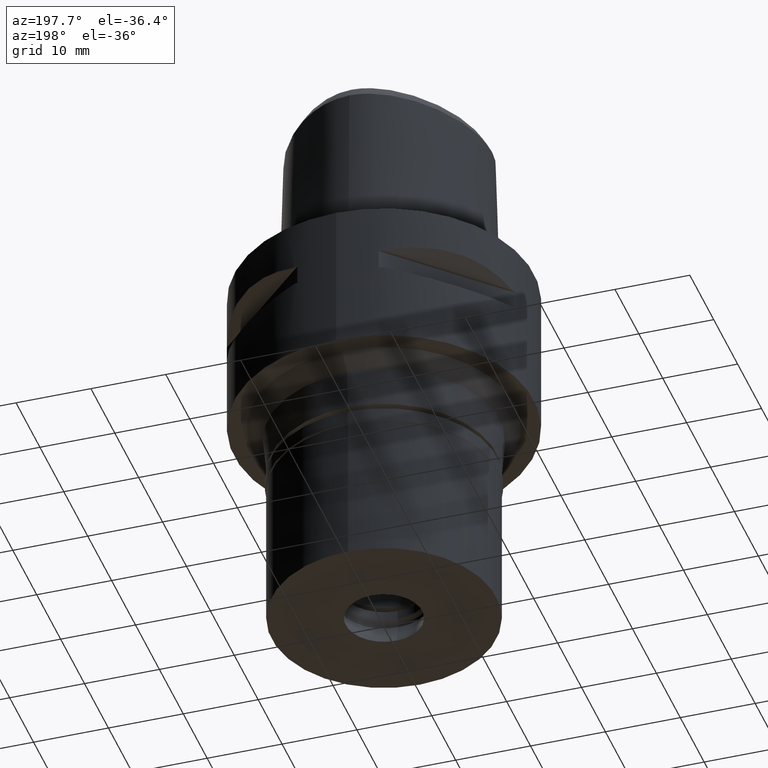
[diagram: clean part render]
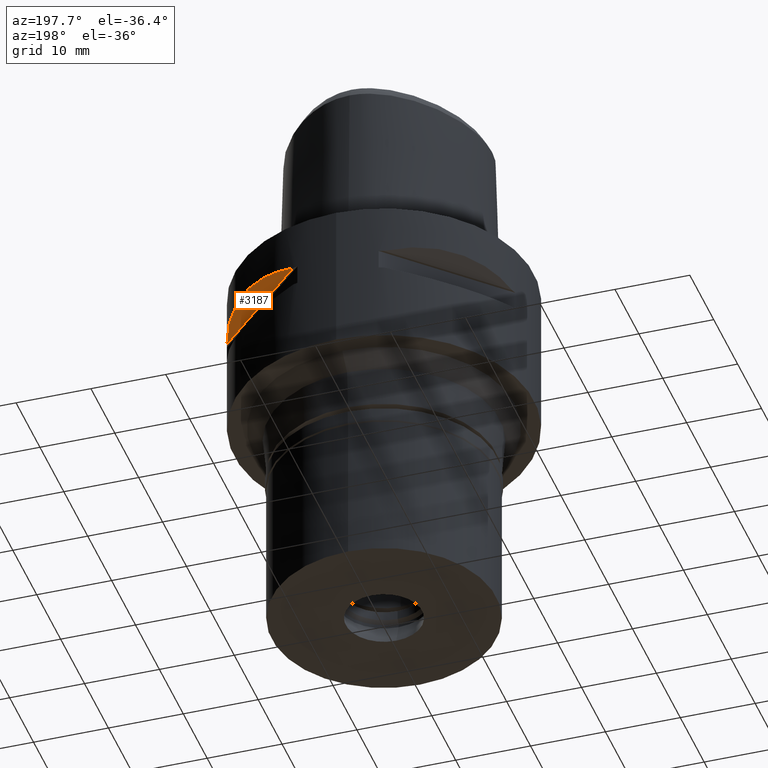
[diagram: same view with one face highlighted and labeled with its STEP entity id]
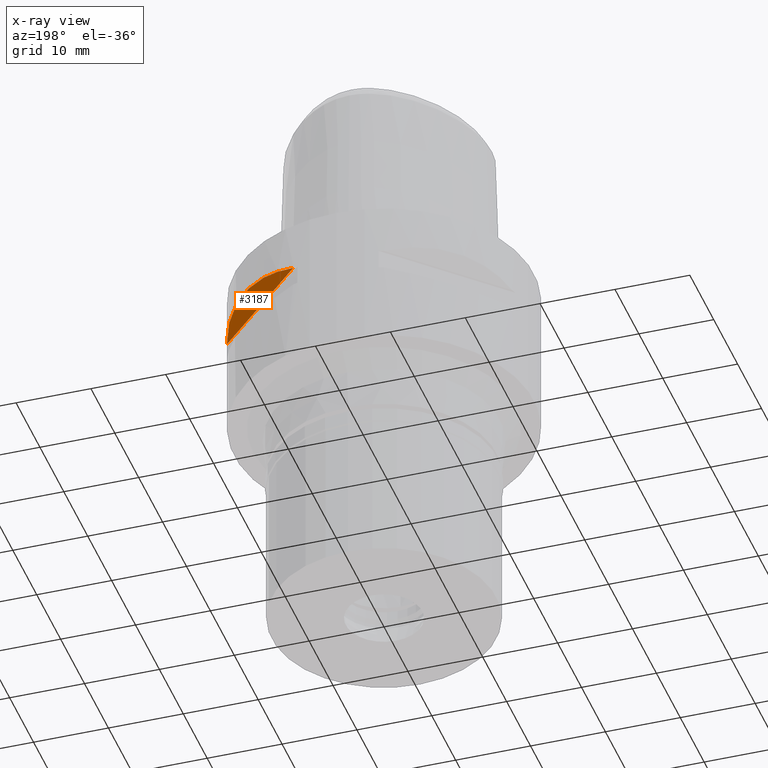
[diagram: x-ray of the same camera — body ghosted, the highlighted face saturated]
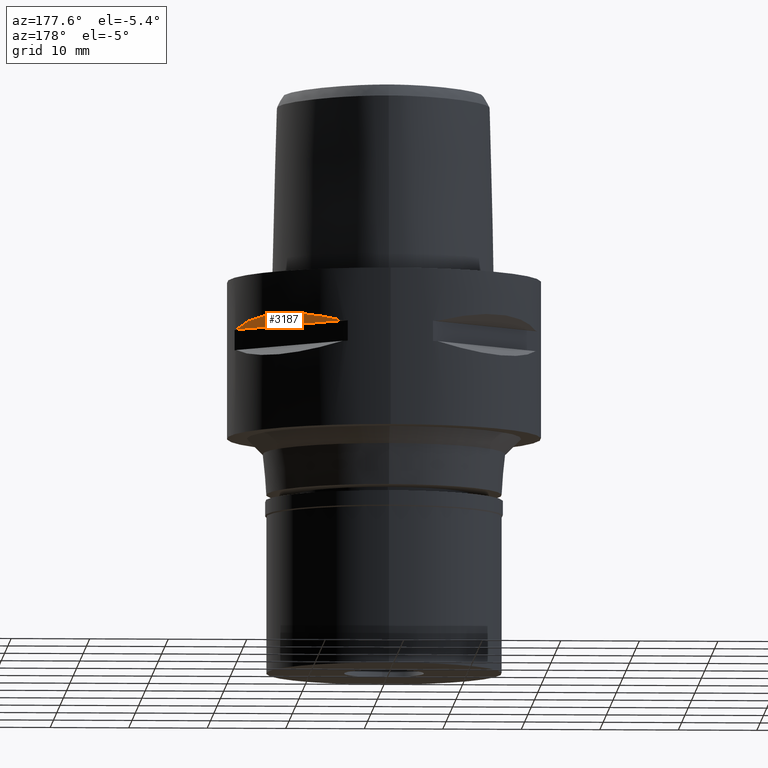
[diagram: same view with one face highlighted and labeled with its STEP entity id]
A machine part, auxiliary view. The second image highlights one B-rep face of the part: STEP entity #3187.
The next image is the same camera in x-ray: the body ghosted, the highlighted face saturated — about 0% of this face is hidden behind the body in this view.
A second angle (auxiliary view) of the same face is appended — the face is thin or edge-on in the first view.
In plain terms, the highlighted planar face has unit normal (-0.3536, -0.3536, 0.866).
Its self-contained STEP definition (entity closure, byte-faithful):
#55 = CARTESIAN_POINT ( 'NONE',  ( 19.06685920573999837, 6.037787676659999825, -6.699999999999000089 ) ) ;
#67 = DIRECTION ( 'NONE',  ( -0.7071067811865475727, 0.7071067811865475727, 0.0000000000000000000 ) ) ;
#241 = CARTESIAN_POINT ( 'NONE',  ( 15.24842641772788809, 13.03584482973402636, -5.401930550040227708 ) ) ;
#284 = EDGE_CURVE ( 'NONE', #1757, #4148, #2469, .T. ) ;
#678 = ORIENTED_EDGE ( 'NONE', *, *, #3669, .F. ) ;
#1001 = CARTESIAN_POINT ( 'NONE',  ( 9.064296220468573750, 17.89930010961132467, -5.942778734617723657 ) ) ;
#1206 = DIRECTION ( 'NONE',  ( -0.3535533905933054277, -0.3535533905933054277, 0.8660254037844128394 ) ) ;
#1312 = CARTESIAN_POINT ( 'NONE',  ( 11.78782756884713301, 16.23556379044043041, -5.510086664166614412 ) ) ;
#1757 = VERTEX_POINT ( 'NONE', #55 ) ;
#2006 = B_SPLINE_CURVE_WITH_KNOTS ( 'NONE', 3,
 ( #3593, #2819, #3490, #4253, #241, #4638, #1312, #1001, #3151, #4304 ),
 .UNSPECIFIED., .F., .F.,
 ( 4, 2, 2, 2, 4 ),
 ( 0.0000000000000000000, 0.2499999999999998890, 0.4999999999999997780, 0.7499999999999998890, 1.000000000000000000 ),
 .UNSPECIFIED. ) ;
#2199 = CARTESIAN_POINT ( 'NONE',  ( 6.037787676659999825, 19.06685920573999837, -6.699999999999000089 ) ) ;
#2223 = FACE_OUTER_BOUND ( 'NONE', #3618, .T. ) ;
#2469 = LINE ( 'NONE', #3203, #3184 ) ;
#2480 = ORIENTED_EDGE ( 'NONE', *, *, #284, .T. ) ;
#2819 = CARTESIAN_POINT ( 'NONE',  ( 18.57571147347540830, 7.588793634775804264, -6.267314691162188645 ) ) ;
#3151 = CARTESIAN_POINT ( 'NONE',  ( 7.588842109422141213, 18.57569612330058462, -6.267301168153333712 ) ) ;
#3184 = VECTOR ( 'NONE', #4275, 1000.000000000000114 ) ;
#3187 = ADVANCED_FACE ( 'NONE', ( #2223 ), #4456, .F. ) ;
#3203 = CARTESIAN_POINT ( 'NONE',  ( 19.06685920573999837, 6.037787676657999647, -6.700000000000000178 ) ) ;
#3431 = CARTESIAN_POINT ( 'NONE',  ( 6.363961030679000430, 24.04163056033999979, -4.535898384861999588 ) ) ;
#3490 = CARTESIAN_POINT ( 'NONE',  ( 17.89933467641340314, 9.064227960950521634, -5.942799019131007832 ) ) ;
#3593 = CARTESIAN_POINT ( 'NONE',  ( 19.06685920573999837, 6.037787676659999825, -6.699999999999000089 ) ) ;
#3618 = EDGE_LOOP ( 'NONE', ( #2480, #678 ) ) ;
#3669 = EDGE_CURVE ( 'NONE', #1757, #4148, #2006, .T. ) ;
#3792 = AXIS2_PLACEMENT_3D ( 'NONE', #3431, #1206, #67 ) ;
#4148 = VERTEX_POINT ( 'NONE', #2199 ) ;
#4253 = CARTESIAN_POINT ( 'NONE',  ( 16.23560874351307248, 11.78776565401153853, -5.510106948679895922 ) ) ;
#4275 = DIRECTION ( 'NONE',  ( -0.7071067811865474617, 0.7071067811865474617, 0.0000000000000000000 ) ) ;
#4304 = CARTESIAN_POINT ( 'NONE',  ( 6.037787676659999825, 19.06685920573999837, -6.699999999999000089 ) ) ;
#4456 = PLANE ( 'NONE',  #3792 ) ;
#4638 = CARTESIAN_POINT ( 'NONE',  ( 13.03584482973396774, 15.24842641772794494, -5.401917027251113446 ) ) ;